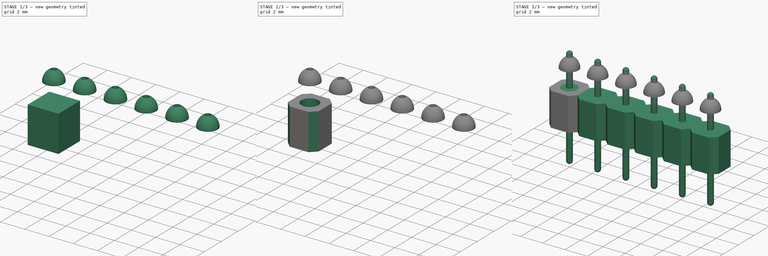
[diagram: build sequence overview — one tinted view per stage of 3, left to right]
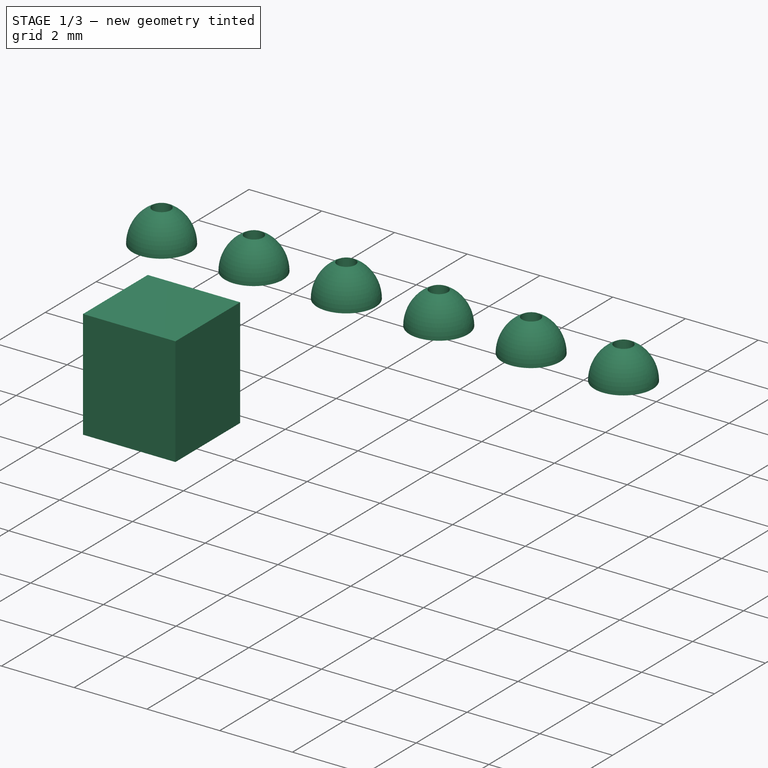
[diagram: stage 1 of 3 — iso view after this stage's code; geometry added in this stage tinted green]
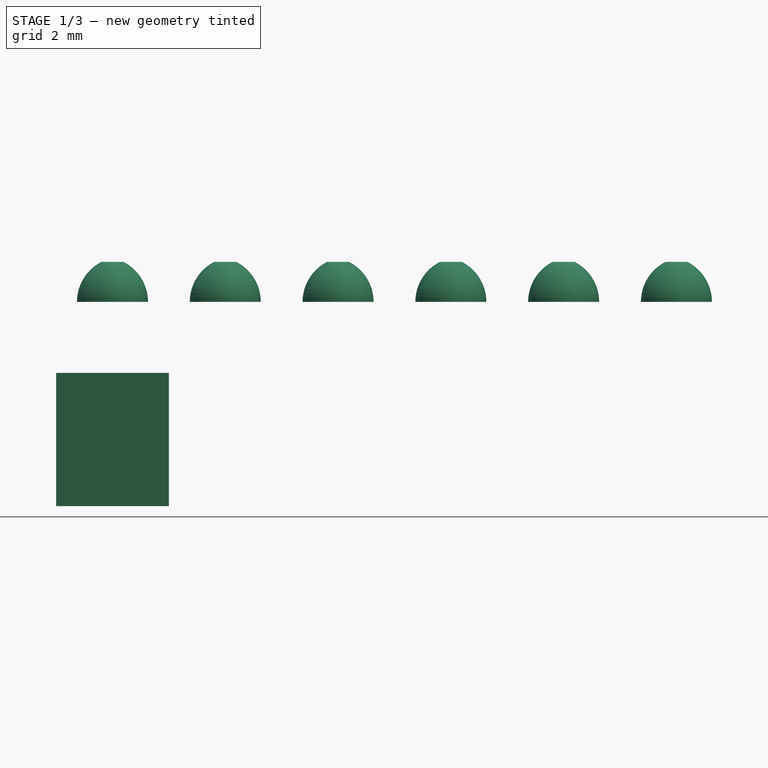
[diagram: stage 1 of 3 — front view after this stage's code; geometry added in this stage tinted green]
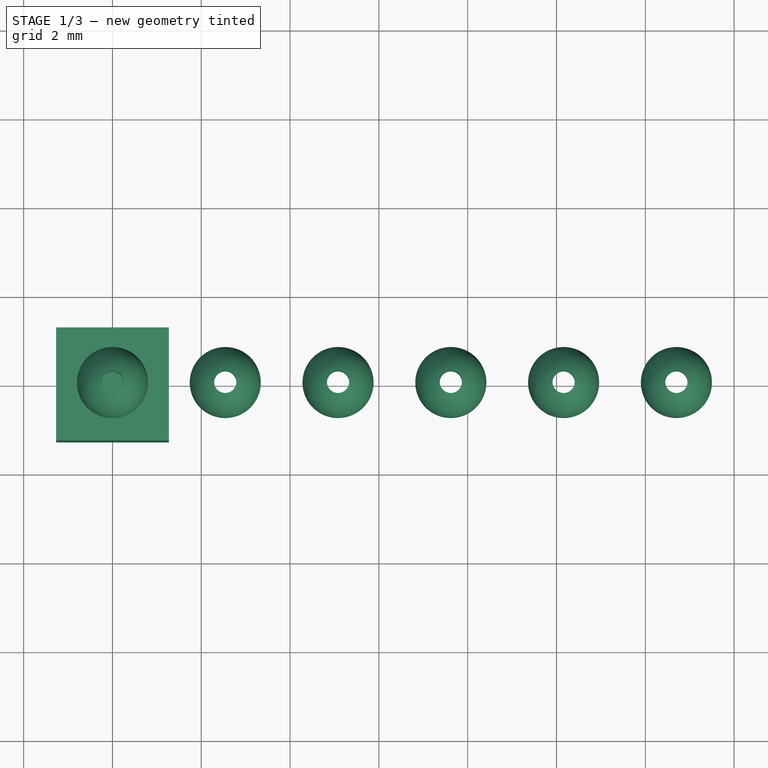
[diagram: stage 1 of 3 — top view after this stage's code; geometry added in this stage tinted green]
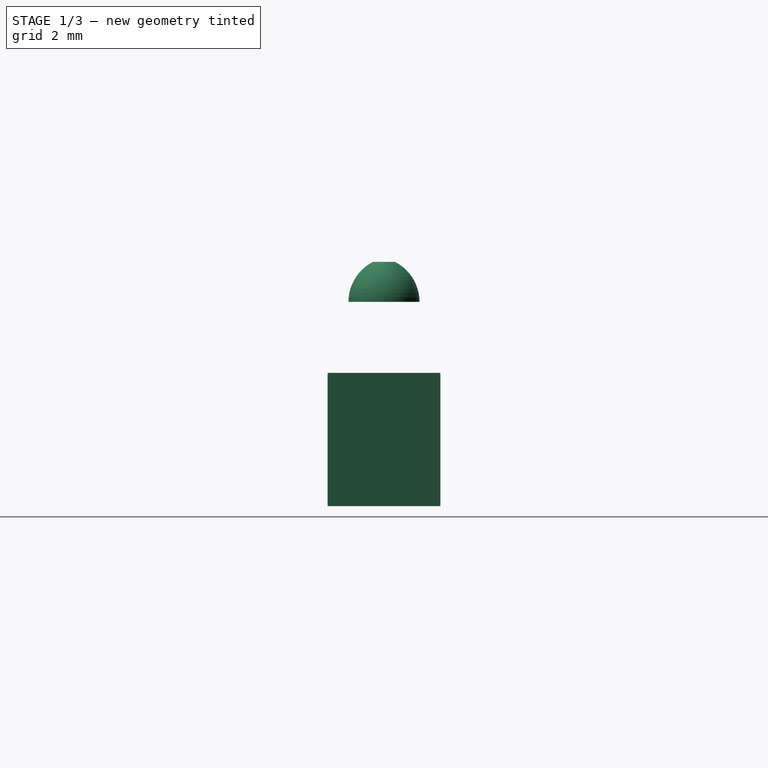
[diagram: stage 1 of 3 — right view after this stage's code; geometry added in this stage tinted green]
FCSTD DOCUMENT  (FreeCAD 0.19R24291 (Git))
Label: 1x6 Male Header
License: All rights reserved
LicenseURL: http://en.wikipedia.org/wiki/All_rights_reserved
objects: Sketcher::SketchObject×4, PartDesign::Body×3, Part::FeaturePython×3, PartDesign::Revolution×2, PartDesign::Pad×1, PartDesign::Chamfer×1, PartDesign::Pocket×1
note: 17 computed .brp shape members not serialized (recipe doc carries the construction recipe); baked Part::Feature solids carry a one-line shape summary decoded from their .brp

FEATURE [Sketcher::SketchObject] Sketch006
  FullyConstrained = true
  MapMode = 5
  Support = -> [XY_Plane004]
  sketch-geometry (4):
    g0: LineSegment StartX=-1.27 StartY=1.27 StartZ=0 EndX=1.27 EndY=1.27 EndZ=0
    g1: LineSegment StartX=1.27 StartY=1.27 StartZ=0 EndX=1.27 EndY=-1.27 EndZ=0
    g2: LineSegment StartX=1.27 StartY=-1.27 StartZ=0 EndX=-1.27 EndY=-1.27 EndZ=0
    g3: LineSegment StartX=-1.27 StartY=-1.27 StartZ=0 EndX=-1.27 EndY=1.27 EndZ=0
  constraints (11):
    c: Coincident(g0,g1)
    c: Coincident(g1,g2)
    c: Coincident(g2,g3)
    c: Coincident(g3,g0)
    c: Horizontal(g0)
    c: Horizontal(g2)
    c: Vertical(g1)
    c: Vertical(g3)
    c: Symmetric(g0,g1,g-1)
    c: Equal(g3,g0)
    c: DistanceX(g0,g0) = 2.54
FEATURE [PartDesign::Pad] Pad004
  Direction = (1,1,1)
  Length = 3
  Length2 = 100
  Profile = -> Sketch006
  Type = 0
FEATURE [Sketcher::SketchObject] Sketch010
  FullyConstrained = true
  MapMode = 5
  Placement = pos=(0,0,0) rot=(1,0,0;1.5708rad)
  Support = -> [XZ_Plane006]
  sketch-geometry (3):
    g0: LineSegment StartX=0.25 StartY=5.5 StartZ=0 EndX=0.25 EndY=4.6 EndZ=0
    g1: LineSegment StartX=0.25 StartY=4.6 StartZ=0 EndX=0.8 EndY=4.6 EndZ=0
    g2: ArcOfCircle CenterX=-0.211364 CenterY=4.6 CenterZ=0 NormalX=0 NormalY=0 NormalZ=1 AngleXU=0 Radius=1.01136 StartAngle=-3.38e-14 EndAngle=1.0971
  constraints (10):
    c: Vertical(g0)
    c: Coincident(g0,g1)
    c: Horizontal(g1)
    c: DistanceY(g-1,g1) = 4.6
    c: DistanceX(g-1,g1) = 0.8
    c: DistanceX(g-1,g0) = 0.25
    c: Coincident(g2,g0)
    c: Coincident(g2,g1)
    c: DistanceY(g0,g0) = 0.9
    c: PointOnObject(g2,g1)
FEATURE [PartDesign::Revolution] Revolution001
  Angle = 360
  Axis = (0,-2e-16,1)
  Base = (0,0,0)
  Placement = pos=(0,0,0) rot=(1,0,0;1.5708rad)
  Profile = -> Sketch010
  ReferenceAxis = -> Sketch010 [V_Axis]
  Reversed = true
FEATURE [PartDesign::Body] Body006
  Group = -> [Sketch010,Revolution001]
  Origin = -> Origin006
  Tip = -> Revolution001
FEATURE [Part::FeaturePython] Array002  # Draft array (typed FeaturePython)
  Angle = 360
  ArrayType = 0
  Axis = (0,0,1)
  Base = -> Body006
  Center = (0,0,0)
  Count = 6
  ExpandArray = false
  Fuse = false
  IntervalAxis = (0,0,0)
  IntervalX = (2.54,0,0)
  IntervalY = (0,100,0)
  IntervalZ = (0,0,100)
  NumberCircles = 3
  NumberPolar = 5
  NumberX = 6
  NumberY = 1
  NumberZ = 1
  PlacementList = 6 placements: arithmetic series from (0,0,0) step (2.54,0,0) to (12.7,0,0)
  RadialDistance = 50
  ScaleList = (6) [(1,1,1),(1,1,1),(1,1,1),(1,1,1),(1,1,1),(1,1,1)]
  Symmetry = 1
  TangentialDistance = 25
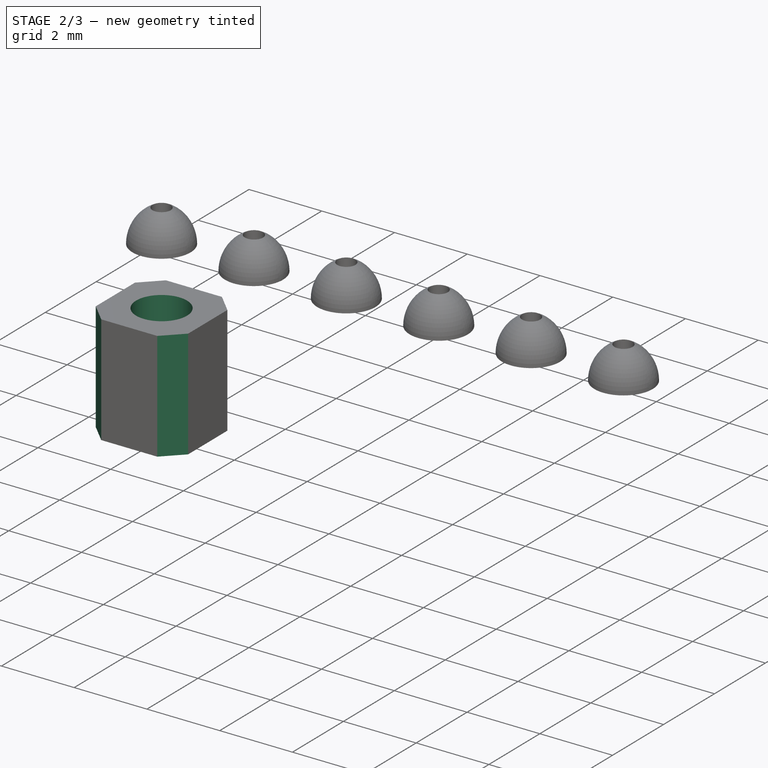
[diagram: stage 2 of 3 — iso view after this stage's code; geometry added in this stage tinted green]
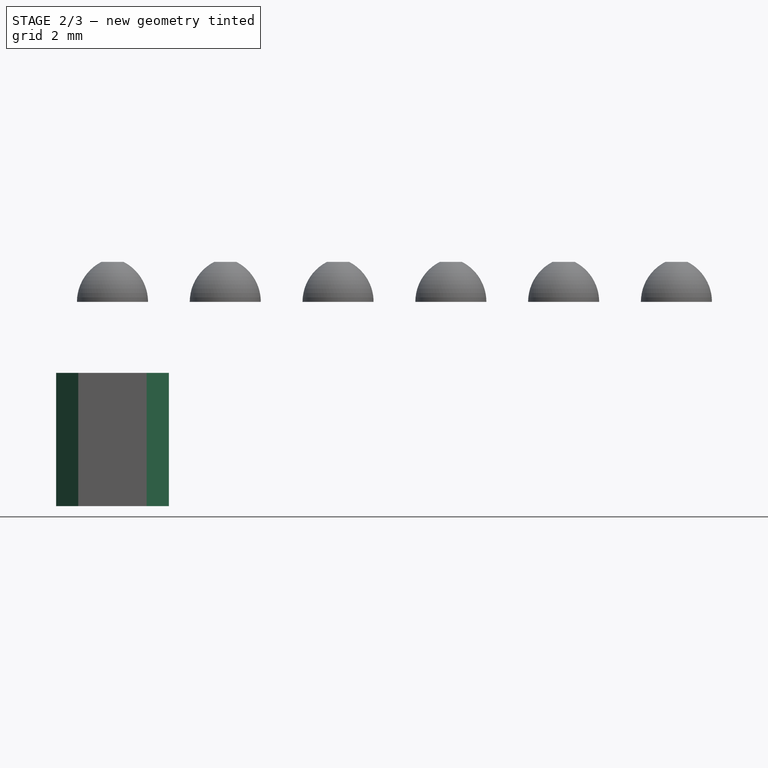
[diagram: stage 2 of 3 — front view after this stage's code; geometry added in this stage tinted green]
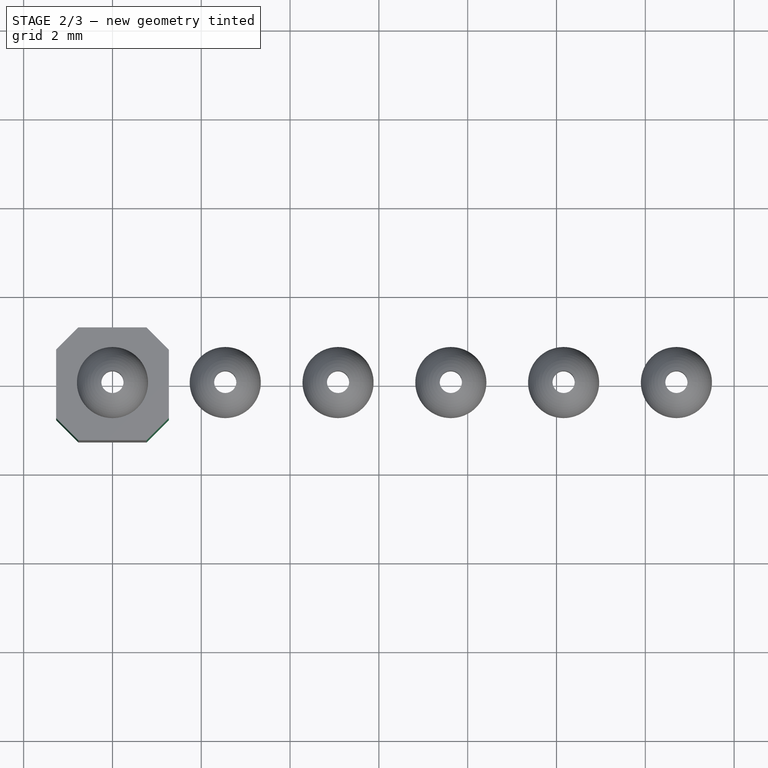
[diagram: stage 2 of 3 — top view after this stage's code; geometry added in this stage tinted green]
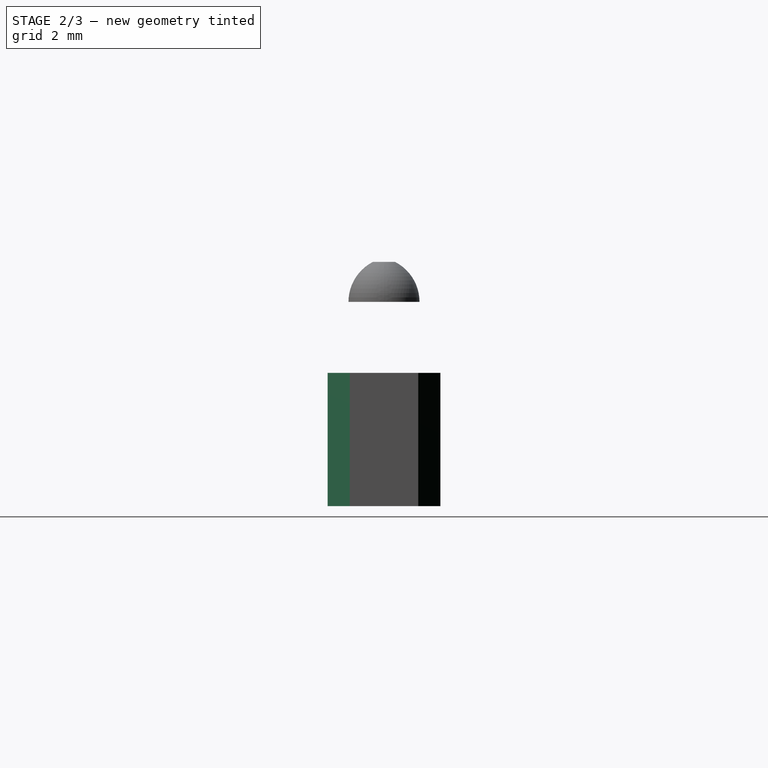
[diagram: stage 2 of 3 — right view after this stage's code; geometry added in this stage tinted green]
FEATURE [PartDesign::Chamfer] Chamfer001
  Angle = 45
  Base = -> Pad004 [Edge1,Edge5,Edge2,Edge8]
  BaseFeature = -> Pad004
  ChamferType = 0
  FlipDirection = false
  Size = 0.5
  Size2 = 1
  SupportTransform = false
FEATURE [Sketcher::SketchObject] Sketch008
  FullyConstrained = true
  MapMode = 5
  Placement = pos=(0,0,3) rot=(0,0,1;0rad)
  Support = -> [Chamfer001]
  sketch-geometry (1):
    g0: Circle CenterX=0 CenterY=0 CenterZ=0 NormalX=0 NormalY=0 NormalZ=1 AngleXU=0 Radius=0.7
  constraints (2):
    c: Coincident(g0,g-1)
    c: Diameter(g0) = 1.4
FEATURE [PartDesign::Pocket] Pocket001
  BaseFeature = -> Chamfer001
  Length = 5
  Length2 = 100
  Profile = -> Sketch008
  Type = 0
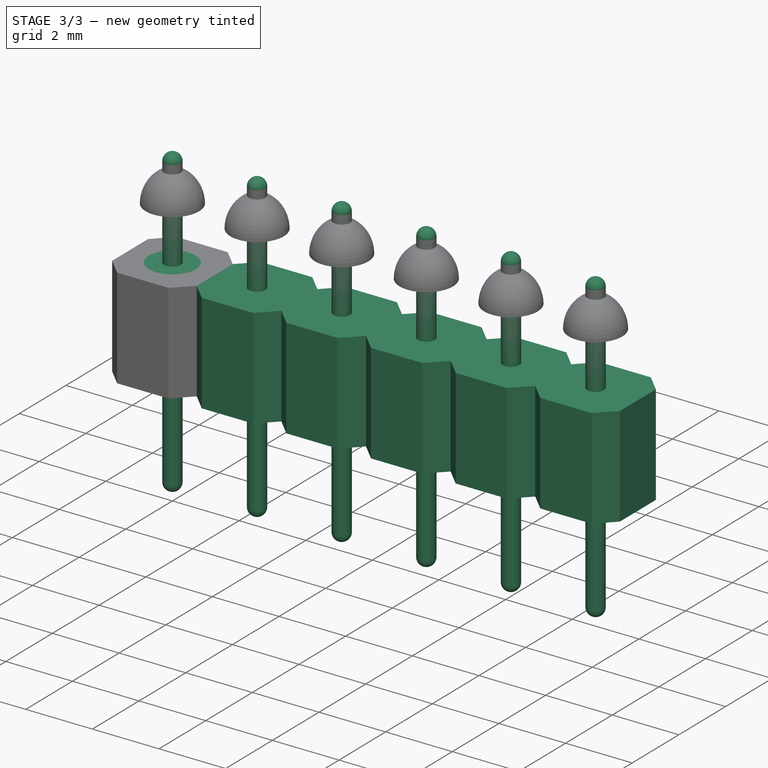
[diagram: stage 3 of 3 — iso view after this stage's code; geometry added in this stage tinted green]
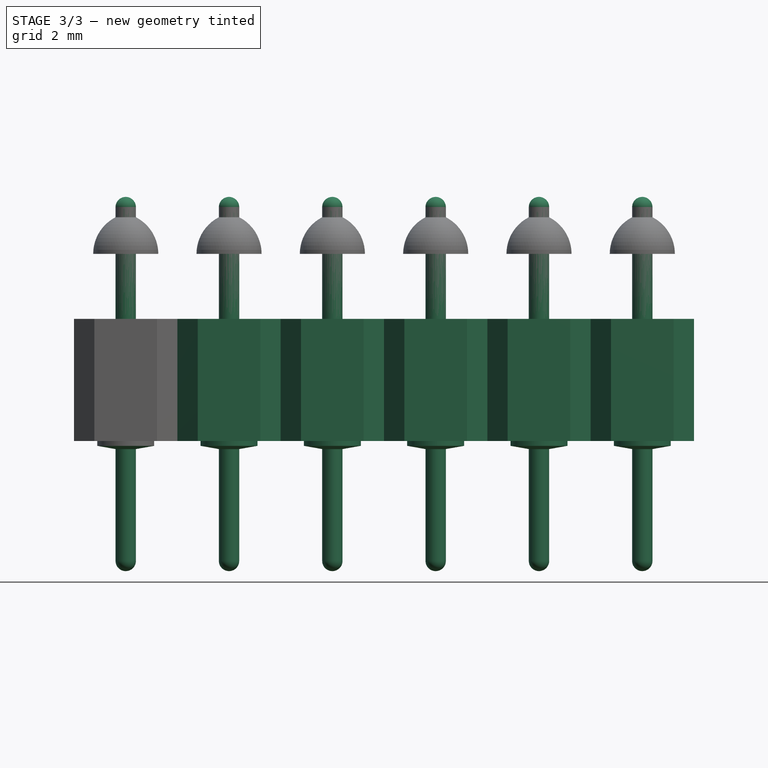
[diagram: stage 3 of 3 — front view after this stage's code; geometry added in this stage tinted green]
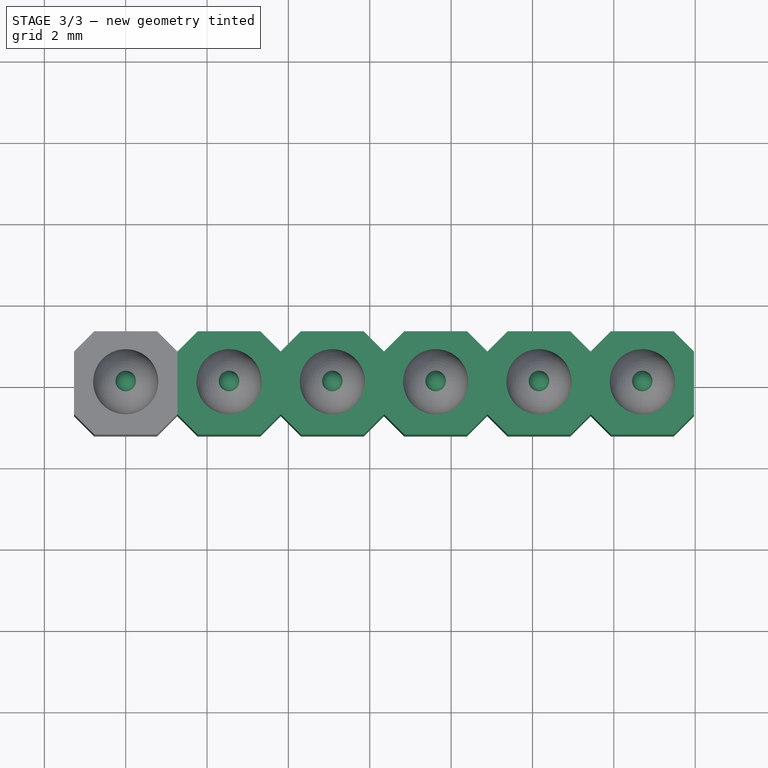
[diagram: stage 3 of 3 — top view after this stage's code; geometry added in this stage tinted green]
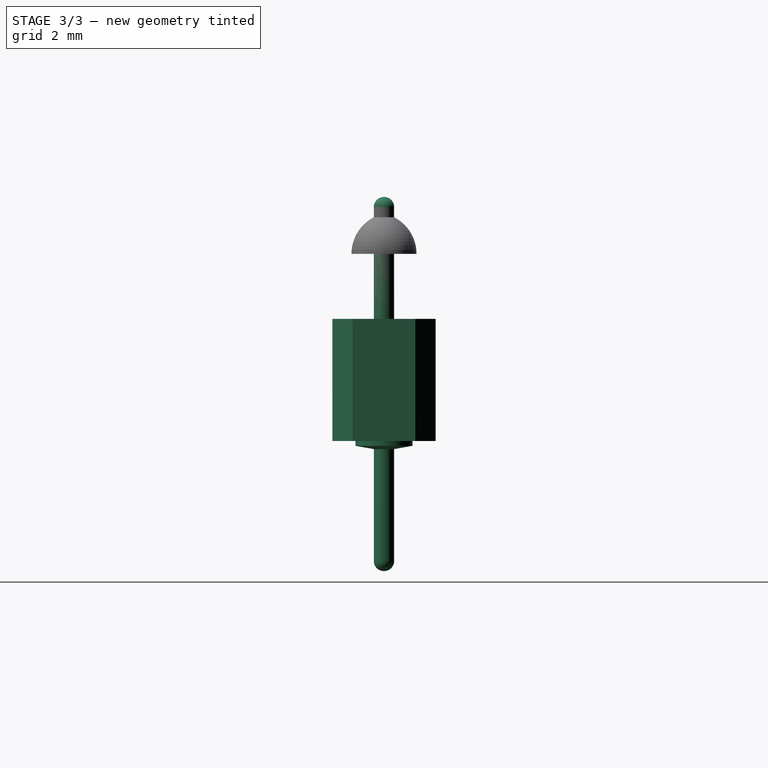
[diagram: stage 3 of 3 — right view after this stage's code; geometry added in this stage tinted green]
FEATURE [PartDesign::Body] Body004
  Group = -> [Sketch006,Pad004,Chamfer001,Sketch008,Pocket001]
  Origin = -> Origin004
  Tip = -> Pocket001
FEATURE [Sketcher::SketchObject] Sketch009
  FullyConstrained = true
  MapMode = 5
  Placement = pos=(0,0,0) rot=(1,0,0;1.5708rad)
  Support = -> [XZ_Plane005]
  sketch-geometry (8):
    g0: LineSegment StartX=0.25 StartY=5.75 StartZ=0 EndX=0.25 EndY=3 EndZ=0
    g1: LineSegment StartX=0.25 StartY=3 StartZ=0 EndX=0.7 EndY=3 EndZ=0
    g2: LineSegment StartX=0.7 StartY=3 StartZ=0 EndX=0.7 EndY=-0.120653 EndZ=0
    g3: LineSegment StartX=0.7 StartY=-0.120653 StartZ=0 EndX=0.25 EndY=-0.2 EndZ=0
    g4: LineSegment StartX=0.25 StartY=-0.2 StartZ=0 EndX=0.25 EndY=-2.95 EndZ=0
    g5: LineSegment StartX=0 StartY=6 StartZ=0 EndX=0 EndY=-3.2 EndZ=0
    g6: ArcOfCircle CenterX=0 CenterY=5.75 CenterZ=0 NormalX=0 NormalY=0 NormalZ=1 AngleXU=0 Radius=0.25 StartAngle=-9e-16 EndAngle=1.5708
    g7: ArcOfCircle CenterX=0 CenterY=-2.95 CenterZ=0 NormalX=0 NormalY=0 NormalZ=1 AngleXU=0 Radius=0.25 StartAngle=4.71239 EndAngle=6.28319
  constraints (23):
    c: Vertical(g0)
    c: Coincident(g0,g1)
    c: Horizontal(g1)
    c: Coincident(g1,g2)
    c: Vertical(g2)
    c: Coincident(g2,g3)
    c: Coincident(g3,g4)
    c: PointOnObject(g5,g-2)
    c: PointOnObject(g5,g-2)
    c: PointOnObject(g6,g5)
    c: Coincident(g6,g5)
    c: Tangent(g6,g0) = 1.5708
    c: Tangent(g0,g4)
    c: PointOnObject(g7,g5)
    c: Coincident(g7,g5)
    c: Tangent(g4,g7) = 1.5708
    c: DistanceX(g5,g0) = 0.25
    c: DistanceY(g5,g3) = 3
    c: DistanceY(g0,g5) = 3
    c: DistanceY(g-1,g1) = 3
    c: DistanceX(g-1,g1) = 0.7
    c: Angle(g4,g3) = 1.74533
    c: DistanceY(g3,g-1) = 0.2
FEATURE [PartDesign::Revolution] Revolution
  Angle = 360
  Axis = (0,-2e-16,1)
  Base = (0,0,0)
  Placement = pos=(0,0,0) rot=(1,0,0;1.5708rad)
  Profile = -> Sketch009
  ReferenceAxis = -> Sketch009 [V_Axis]
  Reversed = true
FEATURE [PartDesign::Body] Body005
  Group = -> [Sketch009,Revolution]
  Origin = -> Origin005
  Tip = -> Revolution
FEATURE [Part::FeaturePython] Array  # Draft array (typed FeaturePython)
  Angle = 360
  ArrayType = 0
  Axis = (0,0,1)
  Base = -> Body005
  Center = (0,0,0)
  Count = 6
  ExpandArray = false
  Fuse = false
  IntervalAxis = (0,0,0)
  IntervalX = (2.54,0,0)
  IntervalY = (0,100,0)
  IntervalZ = (0,0,100)
  NumberCircles = 3
  NumberPolar = 5
  NumberX = 6
  NumberY = 1
  NumberZ = 1
  PlacementList = 6 placements: arithmetic series from (0,0,0) step (2.54,0,0) to (12.7,0,0)
  RadialDistance = 50
  ScaleList = (6) [(1,1,1),(1,1,1),(1,1,1),(1,1,1),(1,1,1),(1,1,1)]
  Symmetry = 1
  TangentialDistance = 25
FEATURE [Part::FeaturePython] Array001  # Draft array (typed FeaturePython)
  Angle = 360
  ArrayType = 0
  Axis = (0,0,1)
  Base = -> Body004
  Center = (0,0,0)
  Count = 6
  ExpandArray = false
  Fuse = false
  IntervalAxis = (0,0,0)
  IntervalX = (2.54,0,0)
  IntervalY = (0,100,0)
  IntervalZ = (0,0,100)
  NumberCircles = 3
  NumberPolar = 5
  NumberX = 6
  NumberY = 1
  NumberZ = 1
  PlacementList = 6 placements: arithmetic series from (0,0,0) step (2.54,0,0) to (12.7,0,0)
  RadialDistance = 50
  ScaleList = (6) [(1,1,1),(1,1,1),(1,1,1),(1,1,1),(1,1,1),(1,1,1)]
  Symmetry = 1
  TangentialDistance = 25
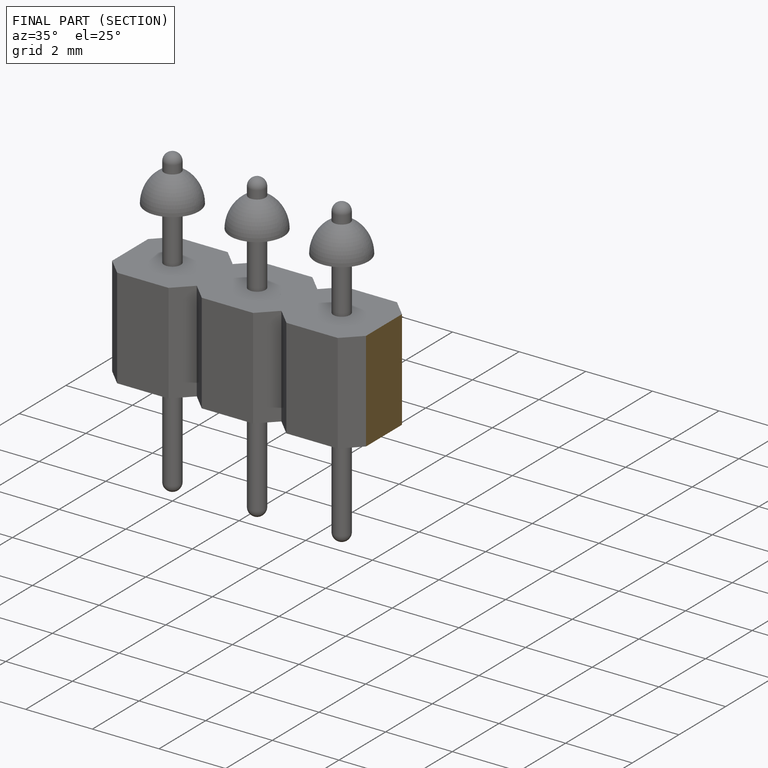
[diagram: finished part — half-section view (interior)]
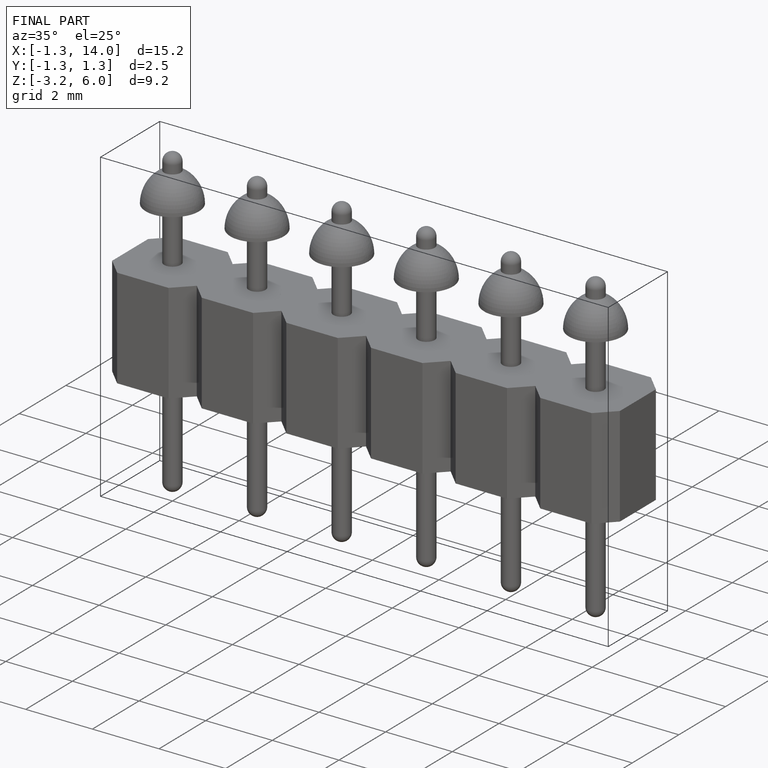
[diagram: finished part — iso view with bounding-box wireframe]
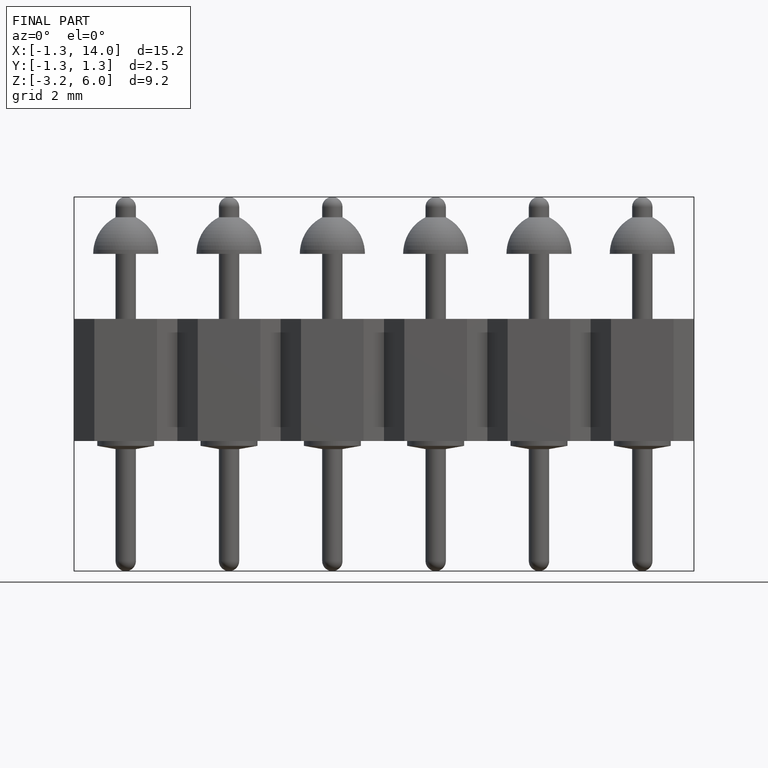
[diagram: finished part — front view with bounding-box wireframe]
